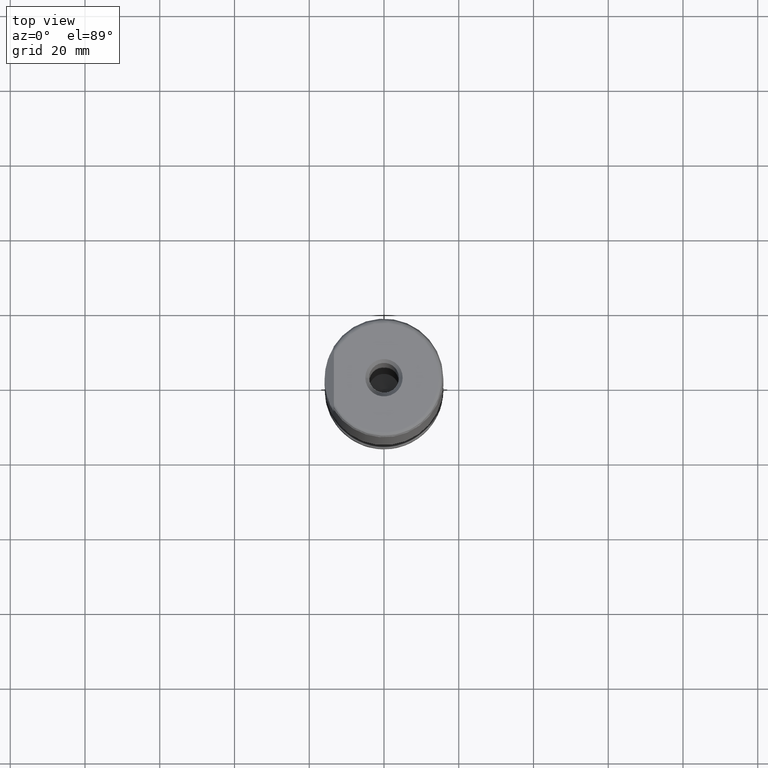
[diagram: clean part render]
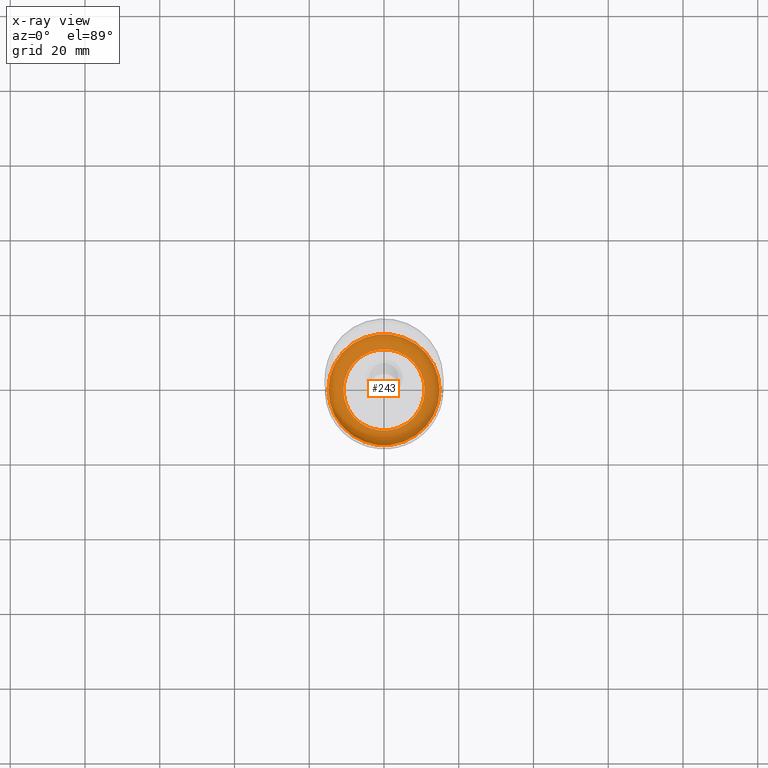
[diagram: x-ray — body ghosted, one internal face saturated and labeled with its STEP entity id]
A machine part, top view, then the same camera in x-ray: the body is ghosted and one INTERNAL B-rep face — a face not visible from any outside direction — is saturated and labeled: STEP entity #243.
In plain terms, the highlighted toroidal blend (fillet) surface has major radius 10.875 mm and minor (blend) radius 4 mm.
Its self-contained STEP definition (entity closure, byte-faithful):
#204=TOROIDAL_SURFACE('',#1021,10.875,4.);
#243=ADVANCED_FACE('',(#341,#342),#204,.T.);
#341=FACE_BOUND('',#455,.T.);
#342=FACE_BOUND('',#456,.T.);
#455=EDGE_LOOP('',(#615));
#456=EDGE_LOOP('',(#616));
#615=ORIENTED_EDGE('',*,*,#792,.F.);
#616=ORIENTED_EDGE('',*,*,#795,.F.);
#718=VERTEX_POINT('',#1737);
#721=VERTEX_POINT('',#1761);
#792=EDGE_CURVE('',#718,#718,#853,.T.);
#795=EDGE_CURVE('',#721,#721,#855,.T.);
#853=CIRCLE('',#1000,10.875);
#855=CIRCLE('',#1003,14.875);
#1000=AXIS2_PLACEMENT_3D('',#1736,#1091,#1092);
#1003=AXIS2_PLACEMENT_3D('',#1760,#1097,#1098);
#1021=AXIS2_PLACEMENT_3D('',#2122,#1140,#1141);
#1091=DIRECTION('',(-1.17145536458252E-15,0.,-1.));
#1092=DIRECTION('',(1.,0.,-1.17642166761645E-15));
#1097=DIRECTION('',(1.17145536458252E-15,0.,1.));
#1098=DIRECTION('',(1.,0.,-1.16620065611886E-15));
#1140=DIRECTION('',(1.17145536458252E-15,0.,1.));
#1141=DIRECTION('',(1.,0.,-1.16620065611886E-15));
#1736=CARTESIAN_POINT('',(1.52289197395728E-15,0.,1.3));
#1737=CARTESIAN_POINT('',(10.875,0.,1.29999999999999));
#1760=CARTESIAN_POINT('',(6.20871343228738E-15,0.,5.3));
#1761=CARTESIAN_POINT('',(14.875,0.,5.29999999999998));
#2122=CARTESIAN_POINT('',(6.20871343228738E-15,0.,5.3));